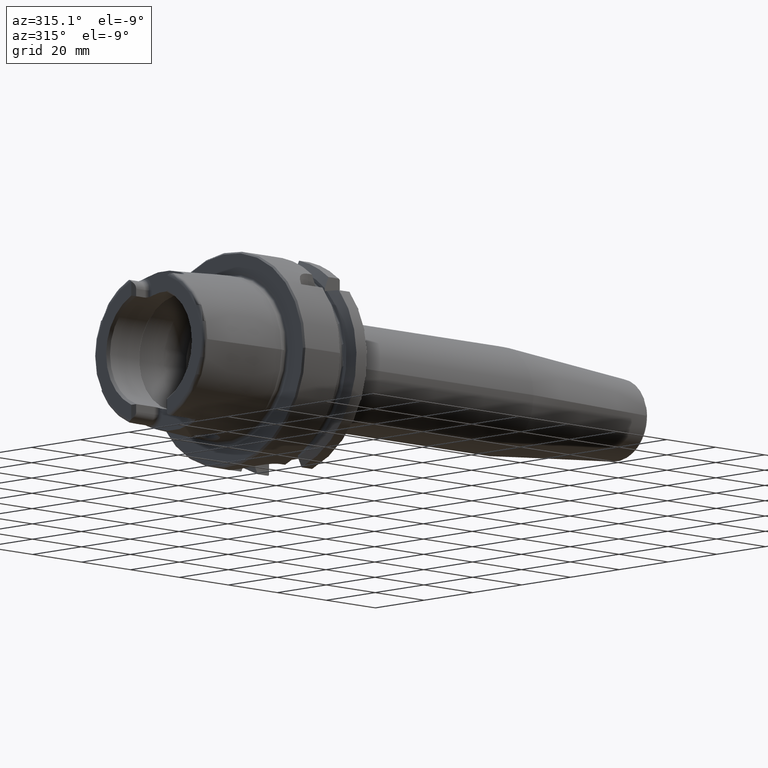
[diagram: clean part render]
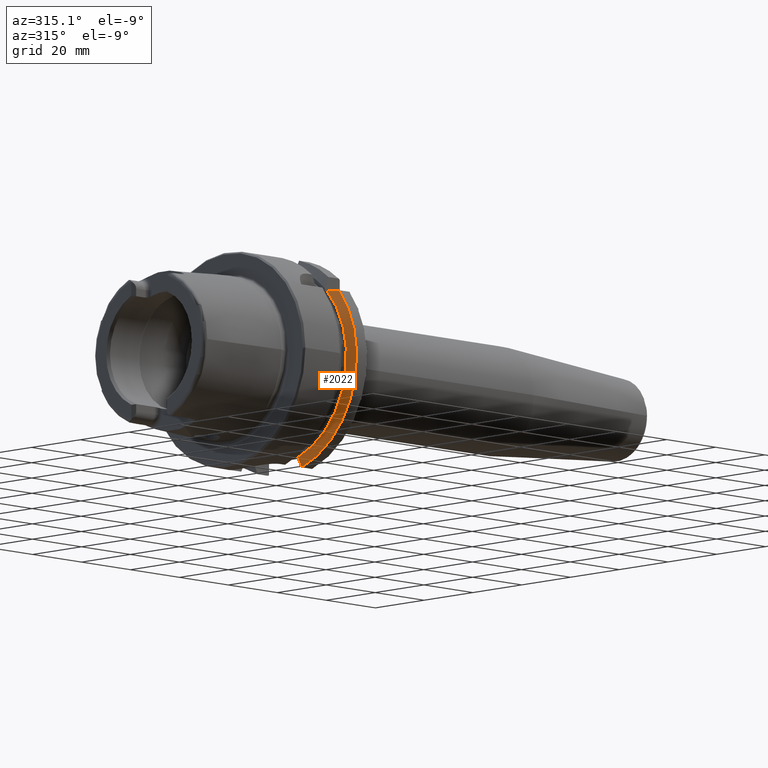
[diagram: same view with one face highlighted and labeled with its STEP entity id]
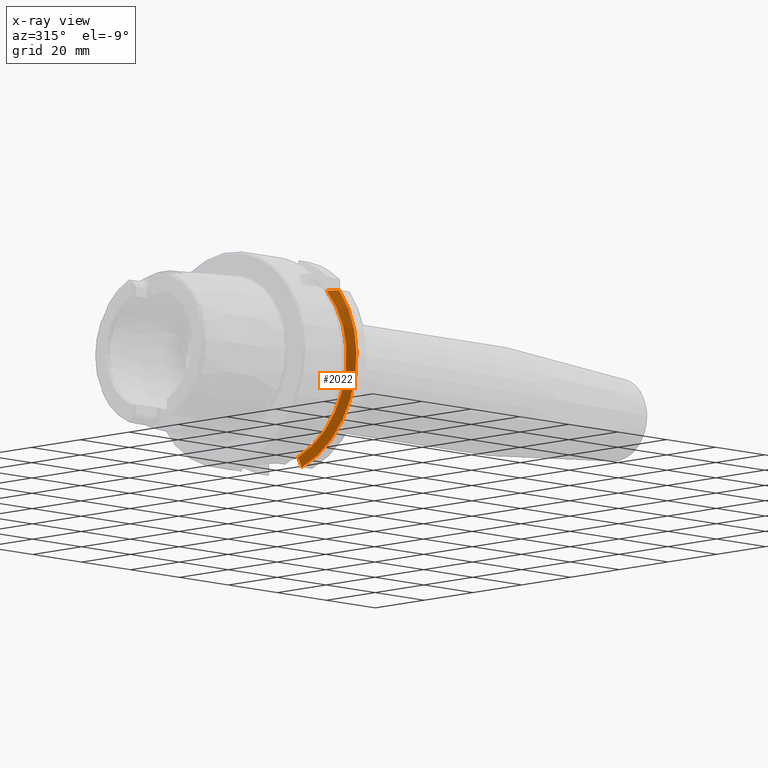
[diagram: x-ray of the same camera — body ghosted, the highlighted face saturated]
A machine part, auxiliary view. The second image highlights one B-rep face of the part: STEP entity #2022.
The next image is the same camera in x-ray: the body ghosted, the highlighted face saturated — about 0% of this face is hidden behind the body in this view.
In plain terms, the highlighted conical surface has half-angle 60 deg.
Its self-contained STEP definition (entity closure, byte-faithful):
#17=(
BOUNDED_CURVE()
B_SPLINE_CURVE(2,(#3795,#3796,#3797),.UNSPECIFIED.,.F.,.F.)
B_SPLINE_CURVE_WITH_KNOTS((3,3),(0.,0.378858277140999),.UNSPECIFIED.)
CURVE()
GEOMETRIC_REPRESENTATION_ITEM()
RATIONAL_B_SPLINE_CURVE((1.,1.00166199353854,1.))
REPRESENTATION_ITEM('')
);
#23=(
BOUNDED_CURVE()
B_SPLINE_CURVE(2,(#3935,#3936,#3937),.UNSPECIFIED.,.F.,.F.)
B_SPLINE_CURVE_WITH_KNOTS((3,3),(0.,0.311314369989023),.UNSPECIFIED.)
CURVE()
GEOMETRIC_REPRESENTATION_ITEM()
RATIONAL_B_SPLINE_CURVE((1.,1.00102053193598,1.))
REPRESENTATION_ITEM('')
);
#277=FACE_OUTER_BOUND('',#402,.T.);
#402=EDGE_LOOP('',(#1674,#1675,#1676,#1677));
#731=CIRCLE('',#2206,28.8975952641916);
#745=CIRCLE('',#2239,31.5);
#899=VERTEX_POINT('',#3791);
#901=VERTEX_POINT('',#3794);
#923=VERTEX_POINT('',#3891);
#928=VERTEX_POINT('',#3933);
#1136=EDGE_CURVE('',#901,#899,#17,.T.);
#1166=EDGE_CURVE('',#899,#923,#731,.T.);
#1176=EDGE_CURVE('',#923,#928,#23,.T.);
#1223=EDGE_CURVE('',#901,#928,#745,.T.);
#1674=ORIENTED_EDGE('',*,*,#1136,.T.);
#1675=ORIENTED_EDGE('',*,*,#1166,.T.);
#1676=ORIENTED_EDGE('',*,*,#1176,.T.);
#1677=ORIENTED_EDGE('',*,*,#1223,.F.);
#1947=CONICAL_SURFACE('',#2246,30.1987976320958,1.0471975511966);
#2022=ADVANCED_FACE('',(#277),#1947,.T.);
#2206=AXIS2_PLACEMENT_3D('',#3893,#2628,#2629);
#2239=AXIS2_PLACEMENT_3D('',#4145,#2714,#2715);
#2246=AXIS2_PLACEMENT_3D('',#4160,#2730,#2731);
#2628=DIRECTION('center_axis',(1.,0.,0.));
#2629=DIRECTION('ref_axis',(0.,0.,-1.));
#2714=DIRECTION('center_axis',(1.,0.,0.));
#2715=DIRECTION('ref_axis',(0.,0.,-1.));
#2730=DIRECTION('center_axis',(1.,0.,0.));
#2731=DIRECTION('ref_axis',(0.,-0.966819045705046,-0.255462194584608));
#3791=CARTESIAN_POINT('',(19.875,-20.8583559288126,20.));
#3794=CARTESIAN_POINT('',(21.3774990747593,-24.3361870472759,20.));
#3795=CARTESIAN_POINT('Ctrl Pts',(21.3774990747593,-24.3361870472759,20.));
#3796=CARTESIAN_POINT('Ctrl Pts',(20.5684390397668,-22.5223452916166,20.));
#3797=CARTESIAN_POINT('Ctrl Pts',(19.875,-20.8583559288126,20.));
#3891=CARTESIAN_POINT('',(19.875,-9.,-27.4603534582684));
#3893=CARTESIAN_POINT('Origin',(19.875,0.,0.));
#3933=CARTESIAN_POINT('',(21.3774990747593,-9.,-30.1869176962472));
#3935=CARTESIAN_POINT('Ctrl Pts',(19.875,-9.,-27.4603534582684));
#3936=CARTESIAN_POINT('Ctrl Pts',(20.5907174110267,-9.,-28.7648946319029));
#3937=CARTESIAN_POINT('Ctrl Pts',(21.3774990747593,-9.,-30.1869176962472));
#4145=CARTESIAN_POINT('Origin',(21.3774990747593,0.,0.));
#4160=CARTESIAN_POINT('Origin',(20.6262495373797,0.,0.));